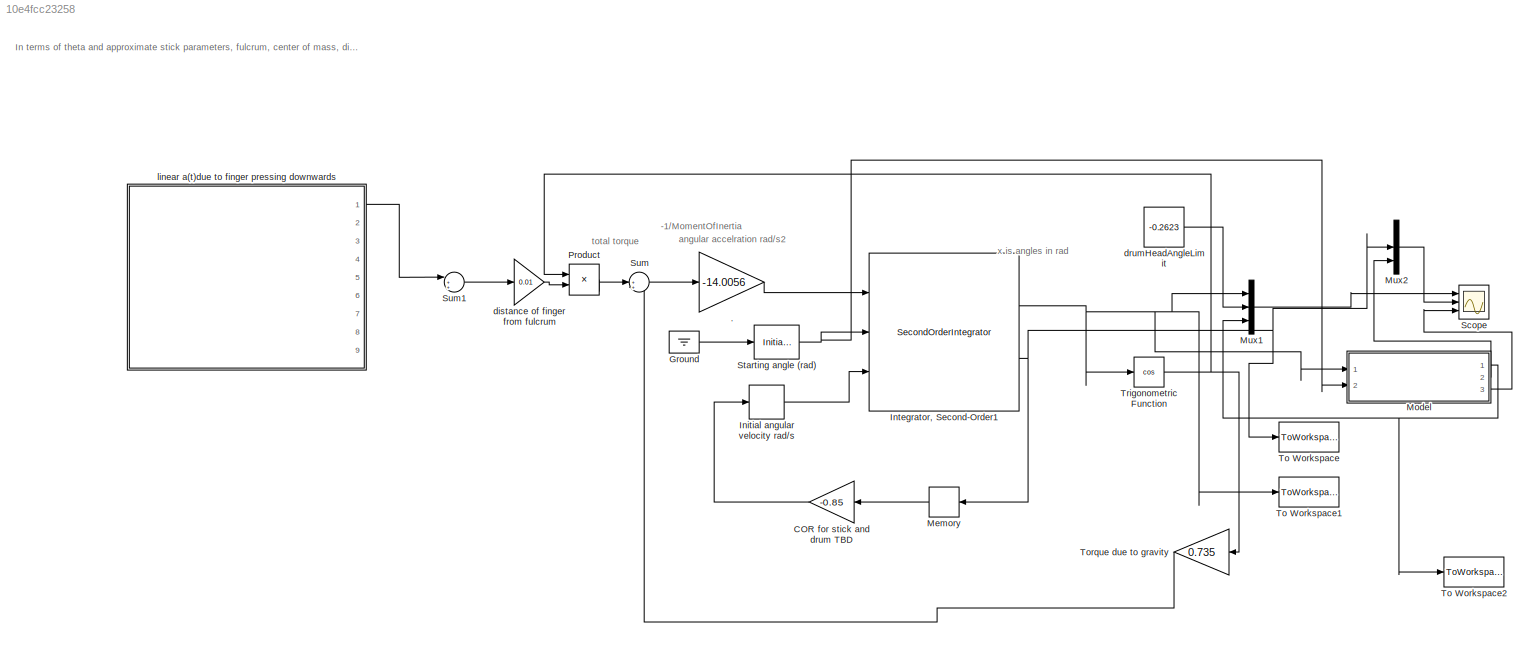
MODEL slx_10e4fcc23258
KIND model
CONFIG StopFcn = position = posProfile.signals.values;\nvelocity = velProfile.signals.values;\ndiffPosition = diff(position);\ndiffPosition(diffPosition == 0) = [];\n\n\nposition(length(diffPosition): end)= []; %remove trailing zeros. neede for midi sound. \nvelocity(length(diffPosition): end) = []; \n\nposition = position'; velocity = velocity';\nposition(position ~= -0.2623) = 0;\nposition(position ~= 0) = 1;\n\nnum = 1:leng...<+351ch>
BLOCK [Gain] .
  Gain = -14.0056
  OutDataTypeStr = Inherit: Inherit via internal rule
  ParamDataTypeStr = Inherit: Inherit via internal rule
  SaturateOnIntegerOverflow = off
BLOCK [Gain] COR for stick and drum TBD
  Gain = -0.85
  OutDataTypeStr = Inherit: Inherit via internal rule
  ParamDataTypeStr = Inherit: Inherit via internal rule
  SaturateOnIntegerOverflow = off
BLOCK [Ground] Ground
BLOCK [InitialCondition] Initial angular velocity rad//s 
  Value = 0
BLOCK [SecondOrderIntegrator] Integrator, Second-Order1
  ICSourceDXDT = external
  ICSourceX = external
  LimitX = on
  LowerLimitX = -0.2623
  Ports = [3, 2]
  ReinitDXDTwhenXreachesSaturation = on
BLOCK [Memory] Memory
BLOCK [ModelReference] Model
  CopyOfModelName = ArmModelVersion2.slx
  DefaultDataLogging = on
  ModelNameDialog = ArmModelVersion2.slx
  ModelReferenceVersion = 1.91
  Ports = [2, 3]
BLOCK [Mux] Mux1
  DisplayOption = bar
  Inputs = 3
  Ports = [3, 1]
BLOCK [Mux] Mux2
  DisplayOption = bar
  Inputs = 3
  Ports = [3, 1]
BLOCK [Product] Product
  InputSameDT = off
  OutDataTypeStr = Inherit: Inherit via internal rule
  Ports = [2, 1]
  RndMeth = Floor
  SaturateOnIntegerOverflow = off
BLOCK [Scope] Scope
  DataFormat = StructureWithTime
  Floating = off
  MaxDataPoints = 50000
  NumInputPorts = 3
  Ports = [3]
  SampleTime = 0
  ShowLegends = off
  TimeRange = 10
  YMax = 0~5~5
  YMin = -1.8~-5~-5
BLOCK [InitialCondition] Starting angle  (rad)
  Value = 0
BLOCK [Sum] Sum
  IconShape = round
  InputSameDT = off
  Inputs = |+++
  OutDataTypeStr = Inherit: Inherit via internal rule
  Ports = [3, 1]
  SaturateOnIntegerOverflow = off
BLOCK [Sum] Sum1
  IconShape = round
  InputSameDT = off
  Inputs = |+++
  OutDataTypeStr = Inherit: Inherit via internal rule
  Ports = [3, 1]
  SaturateOnIntegerOverflow = off
BLOCK [ToWorkspace] To Workspace
  MaxDataPoints = inf
  Ports = [1]
  SampleTime = -1
  SaveFormat = Structure
  VariableName = velProfile
BLOCK [ToWorkspace] To Workspace1
  MaxDataPoints = inf
  Ports = [1]
  SampleTime = -1
  SaveFormat = Structure
  VariableName = posProfile
BLOCK [ToWorkspace] To Workspace2
  MaxDataPoints = inf
  Ports = [1]
  SampleTime = -1
  SaveFormat = Structure
  VariableName = armmodeloutput
BLOCK [Gain] Torque due to gravity
  Gain = 0.735
  OutDataTypeStr = Inherit: Inherit via internal rule
  ParamDataTypeStr = Inherit: Inherit via internal rule
  SaturateOnIntegerOverflow = off
BLOCK [Trigonometry] Trigonometric Function
  Operator = cos
  Ports = [1, 1]
BLOCK [Gain] distance of finger from fulcrum
  Gain = 0.01
  OutDataTypeStr = Inherit: Inherit via internal rule
  ParamDataTypeStr = Inherit: Inherit via internal rule
  SaturateOnIntegerOverflow = off
BLOCK [Constant] drumHeadAngleLimit
  Value = -0.2623
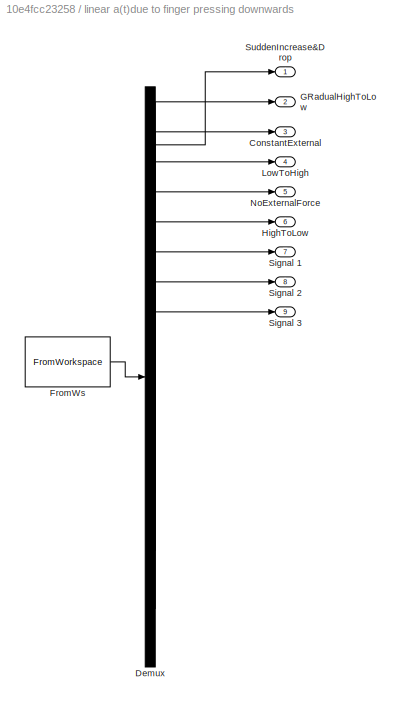
BLOCK [SubSystem] linear a(t)due to finger pressing downwards
  ClipboardFcn = sigbuilder_block('clipboard');
  CloseFcn = sigbuilder_block('close');
  ContinueFcn = sigbuilder_block('continue');
  CopyFcn = sigbuilder_block('copy');
  DeleteFcn = sigbuilder_block('delete');
  FunctionWithSeparateData = off
  LoadFcn = sigbuilder_block('load');
  MaskHideContents = on
  MinAlgLoopOccurrences = off
  ModelCloseFcn = sigbuilder_block('modelClose');
  NameChangeFcn = sigbuilder_block('namechange');
  Opaque = off
  OpenFcn = sigbuilder_block('open',[1259.01 352.722 549.567 545.57 ]);
  PauseFcn = sigbuilder_block('pause');
  Ports = [0, 9]
  PreSaveFcn = sigbuilder_block('preSave');
  PropExecContextOutsideSubsystem = off
  RTWSystemCode = Auto
  RequestExecContextInheritance = off
  StartFcn = sigbuilder_block('start');
  StopFcn = sigbuilder_block('stop');
  Tag = STV Subsys
BLOCK [Outport] linear a(t)due to finger pressing downwards/ConstantExternal
  IconDisplay = Port number
  Port = 3
  Tag = STV Outport
BLOCK [Demux] linear a(t)due to finger pressing downwards/Demux
  Outputs = 9
  Ports = [1, 9]
  Tag = STV Demux
BLOCK [FromWorkspace] linear a(t)due to finger pressing downwards/FromWs
  SampleTime = 0
  Tag = STV FromWs
  VariableName = tuvar
  ZeroCross = on
BLOCK [Outport] linear a(t)due to finger pressing downwards/GRadualHighToLow
  IconDisplay = Port number
  Port = 2
  Tag = STV Outport
BLOCK [Outport] linear a(t)due to finger pressing downwards/HighToLow
  IconDisplay = Port number
  Port = 6
  Tag = STV Outport
BLOCK [Outport] linear a(t)due to finger pressing downwards/LowToHigh
  IconDisplay = Port number
  Port = 4
  Tag = STV Outport
BLOCK [Outport] linear a(t)due to finger pressing downwards/NoExternalForce
  IconDisplay = Port number
  Port = 5
  Tag = STV Outport
BLOCK [Outport] linear a(t)due to finger pressing downwards/Signal 1
  IconDisplay = Port number
  Port = 7
  Tag = STV Outport
BLOCK [Outport] linear a(t)due to finger pressing downwards/Signal 2
  IconDisplay = Port number
  Port = 8
  Tag = STV Outport
BLOCK [Outport] linear a(t)due to finger pressing downwards/Signal 3
  IconDisplay = Port number
  Port = 9
  Tag = STV Outport
BLOCK [Outport] linear a(t)due to finger pressing downwards/SuddenIncrease&Drop
  IconDisplay = Port number
  Tag = STV Outport
ANNOTATION (root): -1/MomentOfInertia
ANNOTATION (root): In terms of theta and approximate stick parameters, fulcrum, center of mass, distance of finger from fulcrum, not a DSHM. Coz that is more suitable for double bounce kind of stuff. More related to rolls
ANNOTATION (root): angular accelration rad/s2
ANNOTATION (root): total torque
ANNOTATION (root): x is angles in rad
LINE .:1 -> Integrator, Second-Order1:1
LINE COR for stick and drum TBD:1 -> Initial angular velocity rad//s :1
LINE Ground:1 -> Starting angle  (rad):1
LINE Initial angular velocity rad//s :1 -> Integrator, Second-Order1:3
NET Integrator, Second-Order1:1 -> Model:1, Mux1:1, To Workspace1:1, Trigonometric Function:1
NET Integrator, Second-Order1:2 -> Memory:1, Mux2:2, To Workspace:1
LINE Memory:1 -> COR for stick and drum TBD:1
NET Model:1 -> Mux1:3, To Workspace2:1
LINE Model:2 -> Mux2:3
LINE Model:3 -> Scope:3
LINE Mux1:1 -> Scope:1
LINE Mux2:1 -> Scope:2
LINE Product:1 -> Sum:2
NET Starting angle  (rad):1 -> Integrator, Second-Order1:2, Model:2
LINE Sum1:1 -> distance of finger from fulcrum:1
LINE Sum:1 -> .:1
LINE Torque due to gravity:1 -> Sum:3
NET Trigonometric Function:1 -> Product:1, Torque due to gravity:1
LINE distance of finger from fulcrum:1 -> Product:2
LINE drumHeadAngleLimit:1 -> Mux1:2
LINE linear a(t)due to finger pressing downwards:1 -> Sum1:1
note: NET lines group one-source signal fan-out (src -> all destinations, sorted); 1:1 wires keep LINE
